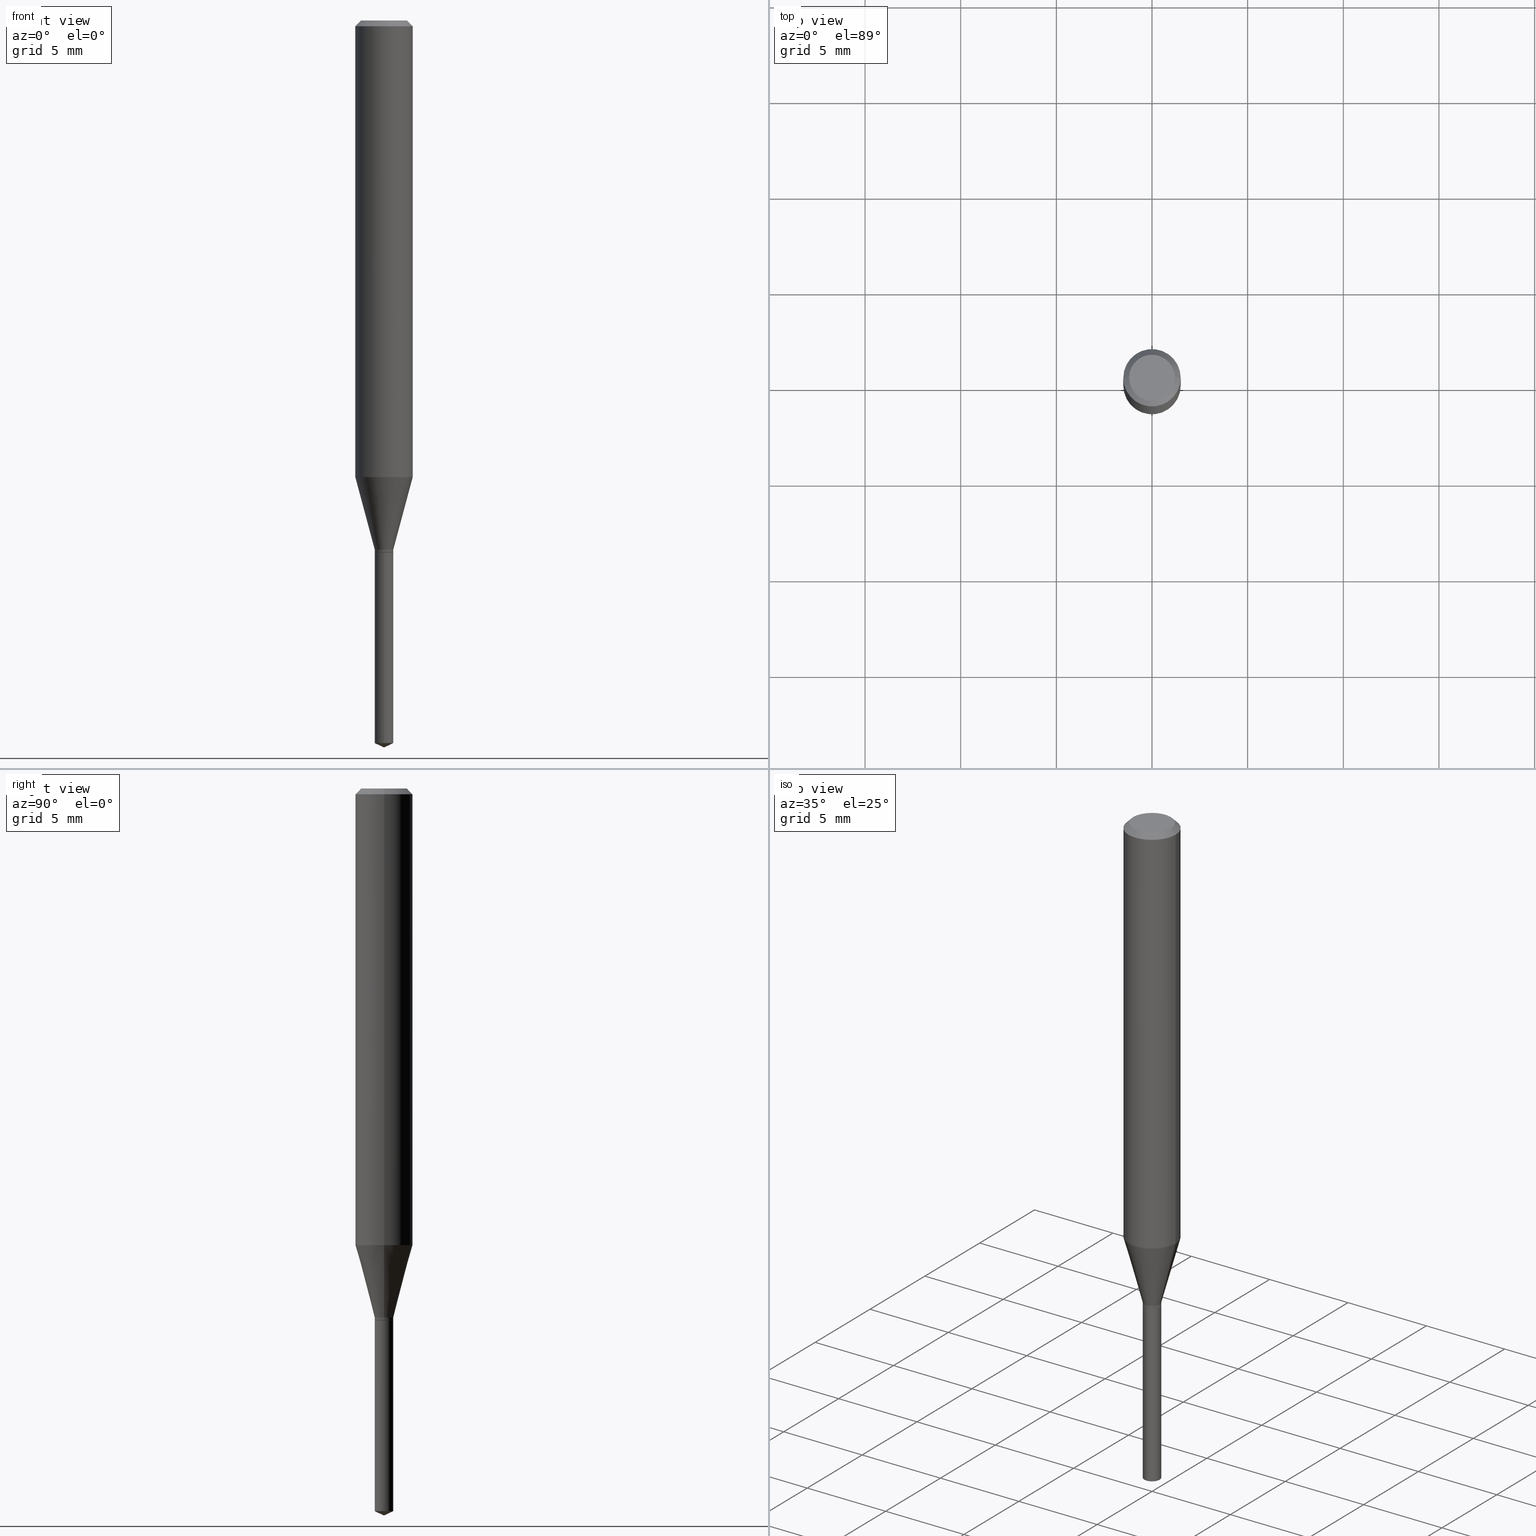
[diagram: canonical four-view strip — front | top / right | iso, engineering-drawing reading convention]
A machine part, canonical four-view strip (front | top / right | iso — engineering-drawing reading convention). The complete STEP part file that produces these views, byte-faithful:
ISO-10303-21;
HEADER;
FILE_DESCRIPTION (( 'STEP AP203' ),
    '1' );
FILE_NAME ('07821.STEP',
    '2024-04-24T03:47:21',
    ( '' ),
    ( '' ),
    'SwSTEP 2.0',
    'SolidWorks 2023',
    '' );
FILE_SCHEMA (( 'CONFIG_CONTROL_DESIGN' ));
ENDSEC;

DATA;
#1 = ORIENTED_EDGE ( 'NONE', *, *, #438, .T. ) ;
#2 = AXIS2_PLACEMENT_3D ( 'NONE', #338, #30, #448 ) ;
#3 = ORIENTED_EDGE ( 'NONE', *, *, #405, .F. ) ;
#4 = CARTESIAN_POINT ( 'NONE',  ( 2.662626436174376212E-29, -3.801524881732416844E-15, -1.088799999999999768 ) ) ;
#5 = VERTEX_POINT ( 'NONE', #349 ) ;
#6 = DIRECTION ( 'NONE',  ( 1.000000000000000000, -6.982962677686266711E-15, 4.876176775795935793E-29 ) ) ;
#7 = DIRECTION ( 'NONE',  ( -2.445468806185136597E-29, 3.491481338843145583E-15, 1.000000000000000000 ) ) ;
#8 = VERTEX_POINT ( 'NONE', #55 ) ;
#9 = DIRECTION ( 'NONE',  ( 1.000000000000000000, -6.982962677686264344E-15, 0.000000000000000000 ) ) ;
#10 = AXIS2_PLACEMENT_3D ( 'NONE', #411, #29, #378 ) ;
#11 = EDGE_LOOP ( 'NONE', ( #352, #488, #3, #489 ) ) ;
#12 = PLANE ( 'NONE',  #314 ) ;
#13 = ORIENTED_EDGE ( 'NONE', *, *, #425, .T. ) ;
#14 = CC_DESIGN_PERSON_AND_ORGANIZATION_ASSIGNMENT ( #86, #130, ( #439 ) ) ;
#15 = CALENDAR_DATE ( 2024, 23, 4 ) ;
#16 = CARTESIAN_POINT ( 'NONE',  ( 0.01910000000000000239, -1.333745871438077044E-16, 9.313497641770237533E-31 ) ) ;
#17 = FACE_OUTER_BOUND ( 'NONE', #419, .T. ) ;
#18 = FACE_OUTER_BOUND ( 'NONE', #392, .T. ) ;
#19 = FACE_OUTER_BOUND ( 'NONE', #225, .T. ) ;
#20 = PERSON_AND_ORGANIZATION ( #176, #248 ) ;
#21 = FACE_OUTER_BOUND ( 'NONE', #138, .T. ) ;
#22 = APPROVAL_ROLE ( '' ) ;
#23 = CARTESIAN_POINT ( 'NONE',  ( -0.04724000000000000421, 3.504923541997677355E-16, -3.380025165670481712E-19 ) ) ;
#24 = PRODUCT ( '07821', '07821', '', ( #97 ) ) ;
#25 = EDGE_CURVE ( 'NONE', #8, #109, #148, .T. ) ;
#26 = LINE ( 'NONE', #215, #247 ) ;
#27 = DIRECTION ( 'NONE',  ( -2.445470214571802116E-29, 3.491479321953280158E-15, 1.000000000000000000 ) ) ;
#28 = VECTOR ( 'NONE', #482, 39.37007874015748143 ) ;
#29 = DIRECTION ( 'NONE',  ( -2.445470214571802116E-29, 3.491479321953280158E-15, 1.000000000000000000 ) ) ;
#30 = DIRECTION ( 'NONE',  ( -2.445468806185136597E-29, 3.491481338843145583E-15, 1.000000000000000000 ) ) ;
#31 = EDGE_CURVE ( 'NONE', #387, #226, #302, .T. ) ;
#32 = EDGE_CURVE ( 'NONE', #109, #5, #133, .T. ) ;
#33 = LINE ( 'NONE', #251, #446 ) ;
#34 = EDGE_LOOP ( 'NONE', ( #388, #219, #454, #300 ) ) ;
#35 = CARTESIAN_POINT ( 'NONE',  ( 2.676565608369631794E-29, -3.821426325363822773E-15, -1.094499999999999806 ) ) ;
#36 = ORIENTED_EDGE ( 'NONE', *, *, #354, .T. ) ;
#37 = MANIFOLD_SOLID_BREP ( 'Body-Move/Copy2[2]', #41 ) ;
#38 = CIRCLE ( 'NONE', #10, 0.01910000000000000239 ) ;
#39 = LOCAL_TIME ( 23, 47, 21.00000000000000000, #114 ) ;
#40 = ORIENTED_EDGE ( 'NONE', *, *, #195, .T. ) ;
#41 = CLOSED_SHELL ( 'NONE', ( #456, #377, #331, #256, #182, #284, #98, #68, #107, #320, #143, #275 ) ) ;
#42 = AXIS2_PLACEMENT_3D ( 'NONE', #376, #299, #445 ) ;
#43 = CC_DESIGN_APPROVAL ( #370, ( #439 ) ) ;
#44 = EDGE_LOOP ( 'NONE', ( #313, #457, #307, #415 ) ) ;
#45 = CC_DESIGN_PERSON_AND_ORGANIZATION_ASSIGNMENT ( #288, #82, ( #439 ) ) ;
#46 = DIRECTION ( 'NONE',  ( 2.445468806185136597E-29, -3.491481338843145583E-15, -1.000000000000000000 ) ) ;
#47 = ORIENTED_EDGE ( 'NONE', *, *, #31, .F. ) ;
#48 = DIRECTION ( 'NONE',  ( -2.445468806185136597E-29, 3.491481338843145583E-15, 1.000000000000000000 ) ) ;
#49 = CARTESIAN_POINT ( 'NONE',  ( 2.676565608369631794E-29, -3.821426325363822773E-15, -1.094499999999999806 ) ) ;
#50 = CARTESIAN_POINT ( 'NONE',  ( 2.676565608369631794E-29, -3.821426325363822773E-15, -1.094499999999999806 ) ) ;
#51 = AXIS2_PLACEMENT_3D ( 'NONE', #162, #319, #282 ) ;
#52 = VECTOR ( 'NONE', #348, 39.37007874015748143 ) ;
#53 = ORIENTED_EDGE ( 'NONE', *, *, #81, .F. ) ;
#54 = CARTESIAN_POINT ( 'NONE',  ( -0.01910000000000000239, -3.674889070683229485E-15, -1.093999999999999861 ) ) ;
#55 = CARTESIAN_POINT ( 'NONE',  ( -0.01910000000000000239, -3.674889070683229485E-15, -1.088799999999999768 ) ) ;
#56 = CARTESIAN_POINT ( 'NONE',  ( 8.265746106709734507E-48, -1.180129479067563789E-33, -3.380025165646692144E-19 ) ) ;
#57 = DIRECTION ( 'NONE',  ( 1.000000000000000000, -6.982962677686264344E-15, 0.000000000000000000 ) ) ;
#58 = DATE_AND_TIME ( #366, #375 ) ;
#59 = DIRECTION ( 'NONE',  ( -1.000000000000000000, 6.982962677686266711E-15, 0.000000000000000000 ) ) ;
#60 = LINE ( 'NONE', #205, #407 ) ;
#61 = DATE_TIME_ROLE ( 'classification_date' ) ;
#62 = CONICAL_SURFACE ( 'NONE', #315, 0.01910000000000000239, 0.2617993877991500740 ) ;
#63 = DIRECTION ( 'NONE',  ( 6.439704144417036664E-15, 0.9063077870366530453, 0.4226182617406927244 ) ) ;
#64 = CARTESIAN_POINT ( 'NONE',  ( 0.000000000000000000, 0.000000000000000000, 0.000000000000000000 ) ) ;
#65 = ORIENTED_EDGE ( 'NONE', *, *, #32, .F. ) ;
#66 = ADVANCED_FACE ( 'NONE', ( #21 ), #128, .T. ) ;
#67 = CARTESIAN_POINT ( 'NONE',  ( -1.333745871437809078E-16, -0.01910000000000382225, -1.094499999999999806 ) ) ;
#68 = ADVANCED_FACE ( 'NONE', ( #367 ), #240, .T. ) ;
#69 = CIRCLE ( 'NONE', #184, 0.04724000000000000421 ) ;
#70 = LINE ( 'NONE', #79, #414 ) ;
#71 = APPROVAL_PERSON_ORGANIZATION ( #322, #413, #238 ) ;
#72 = ORIENTED_EDGE ( 'NONE', *, *, #157, .F. ) ;
#73 = EDGE_CURVE ( 'NONE', #410, #262, #165, .T. ) ;
#74 = VERTEX_POINT ( 'NONE', #329 ) ;
#75 = ORIENTED_EDGE ( 'NONE', *, *, #155, .F. ) ;
#76 = DIRECTION ( 'NONE',  ( 1.000000000000000000, -6.982962677686266711E-15, 0.000000000000000000 ) ) ;
#77 = CONICAL_SURFACE ( 'NONE', #123, 0.01860000000000000195, 0.7853981633974119747 ) ;
#78 = EDGE_LOOP ( 'NONE', ( #53, #449, #426, #344 ) ) ;
#79 = CARTESIAN_POINT ( 'NONE',  ( -0.01910000000000000239, 1.357136625301791525E-16, -9.395166022386871173E-31 ) ) ;
#80 = ORIENTED_EDGE ( 'NONE', *, *, #438, .F. ) ;
#81 = EDGE_CURVE ( 'NONE', #323, #104, #69, .T. ) ;
#82 = PERSON_AND_ORGANIZATION_ROLE ( 'creator' ) ;
#83 = ORIENTED_EDGE ( 'NONE', *, *, #293, .F. ) ;
#84 = DIRECTION ( 'NONE',  ( -6.982962677686265133E-15, -1.000000000000000000, 0.000000000000000000 ) ) ;
#85 = CARTESIAN_POINT ( 'NONE',  ( -0.05904999999999999832, 3.711095515056362547E-16, -0.01181000000000006871 ) ) ;
#86 = PERSON_AND_ORGANIZATION ( #176, #248 ) ;
#87 = ORIENTED_EDGE ( 'NONE', *, *, #476, .F. ) ;
#88 = DIRECTION ( 'NONE',  ( -2.445468806185136597E-29, 3.491481338843145583E-15, 1.000000000000000000 ) ) ;
#89 = DIRECTION ( 'NONE',  ( -2.445468806185136597E-29, 3.491481338843145583E-15, 1.000000000000000000 ) ) ;
#90 = DIRECTION ( 'NONE',  ( -2.445468806185136597E-29, 3.491481338843145583E-15, 1.000000000000000000 ) ) ;
#91 = DIRECTION ( 'NONE',  ( -2.445468806185136597E-29, 3.491481338843145583E-15, 1.000000000000000000 ) ) ;
#92 = CIRCLE ( 'NONE', #51, 0.01910000000000000239 ) ;
#93 = AXIS2_PLACEMENT_3D ( 'NONE', #64, #211, #96 ) ;
#94 = CYLINDRICAL_SURFACE ( 'NONE', #93, 0.01910000000000000239 ) ;
#95 = DIRECTION ( 'NONE',  ( -2.445470214571802116E-29, 3.491479321953280158E-15, 1.000000000000000000 ) ) ;
#96 = DIRECTION ( 'NONE',  ( 1.000000000000000000, -6.982962677686266711E-15, 4.876176775795935232E-29 ) ) ;
#97 = MECHANICAL_CONTEXT ( 'NONE', #321, 'mechanical' ) ;
#98 = ADVANCED_FACE ( 'NONE', ( #470 ), #401, .T. ) ;
#99 = AXIS2_PLACEMENT_3D ( 'NONE', #360, #91, #436 ) ;
#100 = CARTESIAN_POINT ( 'NONE',  ( 2.675342873966538993E-29, -3.819680584694400481E-15, -1.093999999999999861 ) ) ;
#101 = CIRCLE ( 'NONE', #296, 0.04724000000000000421 ) ;
#102 = LOCAL_TIME ( 23, 47, 21.00000000000000000, #396 ) ;
#103 = DIRECTION ( 'NONE',  ( 1.000000000000000000, -6.982962677686266711E-15, 4.876185090822587894E-29 ) ) ;
#104 = VERTEX_POINT ( 'NONE', #23 ) ;
#105 = APPLICATION_PROTOCOL_DEFINITION ( 'international standard', 'config_control_design', 1994, #384 ) ;
#106 = ORIENTED_EDGE ( 'NONE', *, *, #461, .F. ) ;
#107 = ADVANCED_FACE ( 'NONE', ( #131 ), #391, .T. ) ;
#108 = AXIS2_PLACEMENT_3D ( 'NONE', #132, #472, #175 ) ;
#109 = VERTEX_POINT ( 'NONE', #168 ) ;
#110 = DIRECTION ( 'NONE',  ( -2.445468806185136597E-29, 3.491481338843145583E-15, 1.000000000000000000 ) ) ;
#111 = ORIENTED_EDGE ( 'NONE', *, *, #223, .T. ) ;
#112 = AXIS2_PLACEMENT_3D ( 'NONE', #324, #208, #400 ) ;
#113 = AXIS2_PLACEMENT_3D ( 'NONE', #455, #357, #119 ) ;
#114 = COORDINATED_UNIVERSAL_TIME_OFFSET ( 5, 0, .BEHIND. ) ;
#115 = ORIENTED_EDGE ( 'NONE', *, *, #73, .T. ) ;
#116 = EDGE_CURVE ( 'NONE', #74, #410, #394, .T. ) ;
#117 = ORIENTED_EDGE ( 'NONE', *, *, #81, .T. ) ;
#118 = DIRECTION ( 'NONE',  ( -2.445468806185136597E-29, 3.491481338843145583E-15, 1.000000000000000000 ) ) ;
#119 = DIRECTION ( 'NONE',  ( 6.982962677686265922E-15, 1.000000000000000000, -3.491479321953280158E-15 ) ) ;
#120 = EDGE_LOOP ( 'NONE', ( #36, #343, #397, #154 ) ) ;
#121 = DIRECTION ( 'NONE',  ( 1.000000000000000000, -6.982962677686267499E-15, 0.000000000000000000 ) ) ;
#122 = CARTESIAN_POINT ( 'NONE',  ( 1.357136625302058998E-16, 0.01909999999999617906, -1.094499999999999806 ) ) ;
#123 = AXIS2_PLACEMENT_3D ( 'NONE', #169, #90, #57 ) ;
#124 = CC_DESIGN_APPROVAL ( #413, ( #480 ) ) ;
#125 = CARTESIAN_POINT ( 'NONE',  ( 2.676565608369631794E-29, -3.821426325363822773E-15, -1.094499999999999806 ) ) ;
#126 = EDGE_CURVE ( 'NONE', #387, #347, #266, .T. ) ;
#127 = CALENDAR_DATE ( 2024, 23, 4 ) ;
#128 = CYLINDRICAL_SURFACE ( 'NONE', #112, 0.01910000000000000239 ) ;
#129 = DIRECTION ( 'NONE',  ( -6.982962677686267499E-15, -1.000000000000000000, 3.520397390770433360E-15 ) ) ;
#130 = PERSON_AND_ORGANIZATION_ROLE ( 'design_supplier' ) ;
#131 = FACE_OUTER_BOUND ( 'NONE', #181, .T. ) ;
#132 = CARTESIAN_POINT ( 'NONE',  ( 2.676565608369631794E-29, -3.821426325363822773E-15, -1.094499999999999806 ) ) ;
#133 = CIRCLE ( 'NONE', #196, 0.05905000000000010935 ) ;
#134 = CONICAL_SURFACE ( 'NONE', #206, 0.01860000000000000195, 0.7853981633974119747 ) ;
#135 = DIRECTION ( 'NONE',  ( -2.445468806185136877E-29, 3.491481338843145188E-15, 1.000000000000000000 ) ) ;
#136 = CARTESIAN_POINT ( 'NONE',  ( 0.01910000000000000239, -3.934899468876224450E-15, -1.088799999999999768 ) ) ;
#137 = CARTESIAN_POINT ( 'NONE',  ( -9.261968845786000133E-28, 1.322362114038720264E-13, 37.87397874015748300 ) ) ;
#138 = EDGE_LOOP ( 'NONE', ( #460, #188, #145, #183 ) ) ;
#139 = AXIS2_PLACEMENT_3D ( 'NONE', #434, #468, #475 ) ;
#140 = DIRECTION ( 'NONE',  ( -2.445468806185136597E-29, 3.491481338843145583E-15, 1.000000000000000000 ) ) ;
#141 = VECTOR ( 'NONE', #63, 39.37007874015748854 ) ;
#142 = CC_DESIGN_DATE_AND_TIME_ASSIGNMENT ( #58, #398, ( #259 ) ) ;
#143 = ADVANCED_FACE ( 'NONE', ( #17 ), #12, .F. ) ;
#144 = FACE_OUTER_BOUND ( 'NONE', #11, .T. ) ;
#145 = ORIENTED_EDGE ( 'NONE', *, *, #444, .F. ) ;
#146 = APPROVAL_PERSON_ORGANIZATION ( #190, #364, #150 ) ;
#147 = ORIENTED_EDGE ( 'NONE', *, *, #116, .F. ) ;
#148 = LINE ( 'NONE', #311, #373 ) ;
#149 = CARTESIAN_POINT ( 'NONE',  ( 2.676565608369631794E-29, -3.821426325363822773E-15, -1.094499999999999806 ) ) ;
#150 = APPROVAL_ROLE ( '' ) ;
#151 = ORIENTED_EDGE ( 'NONE', *, *, #254, .F. ) ;
#152 = CIRCLE ( 'NONE', #108, 0.01860000000000000195 ) ;
#153 = DATE_AND_TIME ( #15, #102 ) ;
#154 = ORIENTED_EDGE ( 'NONE', *, *, #171, .F. ) ;
#155 = EDGE_CURVE ( 'NONE', #410, #450, #92, .T. ) ;
#156 = DIRECTION ( 'NONE',  ( 1.000000000000000000, -6.982962677686265922E-15, 4.876176775795935793E-29 ) ) ;
#157 = EDGE_CURVE ( 'NONE', #273, #262, #334, .T. ) ;
#158 = PLANE ( 'NONE',  #479 ) ;
#159 = EDGE_LOOP ( 'NONE', ( #217, #281 ) ) ;
#160 = DIRECTION ( 'NONE',  ( -2.445470214571802396E-29, 3.491479321953280158E-15, 1.000000000000000000 ) ) ;
#161 = CYLINDRICAL_SURFACE ( 'NONE', #428, 0.05905000000000005383 ) ;
#162 = CARTESIAN_POINT ( 'NONE',  ( 3.636885924104733214E-29, -5.192507643329431697E-15, -1.487193523729239519 ) ) ;
#163 = CARTESIAN_POINT ( 'NONE',  ( 2.662626436174376212E-29, -3.801524881732416844E-15, -1.088799999999999768 ) ) ;
#164 = CIRCLE ( 'NONE', #335, 0.01910000000000000239 ) ;
#165 = LINE ( 'NONE', #245, #340 ) ;
#166 = CARTESIAN_POINT ( 'NONE',  ( -9.261968845786000133E-28, 1.322362114038720264E-13, 37.87397874015748300 ) ) ;
#167 = DATE_AND_TIME ( #127, #270 ) ;
#168 = CARTESIAN_POINT ( 'NONE',  ( -0.05905000000000010241, -2.861385485543939476E-15, -0.9397045702376232157 ) ) ;
#169 = CARTESIAN_POINT ( 'NONE',  ( 2.676565608369631794E-29, -3.821426325363822773E-15, -1.094499999999999806 ) ) ;
#170 = LINE ( 'NONE', #271, #486 ) ;
#171 = EDGE_CURVE ( 'NONE', #180, #387, #235, .T. ) ;
#172 = VECTOR ( 'NONE', #204, 39.37007874015748143 ) ;
#173 = CONICAL_SURFACE ( 'NONE', #237, 84.42940631927483253, 1.134464013796318227 ) ;
#174 = DIRECTION ( 'NONE',  ( 1.000000000000000000, -6.982962677686266711E-15, 0.000000000000000000 ) ) ;
#175 = DIRECTION ( 'NONE',  ( 1.000000000000000000, -6.982962677686264344E-15, 0.000000000000000000 ) ) ;
#176 = PERSON ( 'UNSPECIFIED', 'UNSPECIFIED', 'UNSPECIFIED', ('UNSPECIFIED'), ('UNSPECIFIED'), ('UNSPECIFIED') ) ;
#177 = DIRECTION ( 'NONE',  ( 1.000000000000000000, -6.982962677686266711E-15, 0.000000000000000000 ) ) ;
#178 = DIRECTION ( 'NONE',  ( -2.445468806185136597E-29, 3.491481338843145583E-15, 1.000000000000000000 ) ) ;
#179 = CONICAL_SURFACE ( 'NONE', #437, 0.05904999999999999832, 0.7853981633974452814 ) ;
#180 = VERTEX_POINT ( 'NONE', #371 ) ;
#181 = EDGE_LOOP ( 'NONE', ( #467, #345, #239, #381 ) ) ;
#182 = ADVANCED_FACE ( 'NONE', ( #477 ), #257, .T. ) ;
#183 = ORIENTED_EDGE ( 'NONE', *, *, #73, .F. ) ;
#184 = AXIS2_PLACEMENT_3D ( 'NONE', #56, #289, #432 ) ;
#185 = EDGE_CURVE ( 'NONE', #192, #267, #356, .T. ) ;
#186 = AXIS2_PLACEMENT_3D ( 'NONE', #4, #110, #76 ) ;
#187 = LINE ( 'NONE', #85, #52 ) ;
#188 = ORIENTED_EDGE ( 'NONE', *, *, #390, .T. ) ;
#189 = FACE_OUTER_BOUND ( 'NONE', #159, .T. ) ;
#190 = PERSON_AND_ORGANIZATION ( #176, #248 ) ;
#191 = ORIENTED_EDGE ( 'NONE', *, *, #171, .T. ) ;
#192 = VERTEX_POINT ( 'NONE', #402 ) ;
#193 = DIRECTION ( 'NONE',  ( -2.438088387897960049E-29, 3.491481338843145188E-15, 1.000000000000000000 ) ) ;
#194 = FACE_OUTER_BOUND ( 'NONE', #78, .T. ) ;
#195 = EDGE_CURVE ( 'NONE', #109, #192, #33, .T. ) ;
#196 = AXIS2_PLACEMENT_3D ( 'NONE', #429, #89, #121 ) ;
#197 = CIRCLE ( 'NONE', #227, 0.01910000000000000239 ) ;
#198 = APPROVAL_PERSON_ORGANIZATION ( #20, #370, #22 ) ;
#199 = ORIENTED_EDGE ( 'NONE', *, *, #126, .T. ) ;
#200 = DIRECTION ( 'NONE',  ( 2.445468806185136597E-29, -3.491481338843145583E-15, -1.000000000000000000 ) ) ;
#201 = CARTESIAN_POINT ( 'NONE',  ( 2.662626436174376212E-29, -3.801524881732416844E-15, -1.088799999999999768 ) ) ;
#202 = DIRECTION ( 'NONE',  ( 1.000000000000000000, 0.000000000000000000, 0.000000000000000000 ) ) ;
#203 = PERSON_AND_ORGANIZATION_ROLE ( 'creator' ) ;
#204 = DIRECTION ( 'NONE',  ( -6.328713451373382000E-15, -0.9063077870366501587, 0.4226182617406989972 ) ) ;
#205 = CARTESIAN_POINT ( 'NONE',  ( 0.05905000000000005383, -4.123439461173744271E-16, 2.879382386107502672E-30 ) ) ;
#206 = AXIS2_PLACEMENT_3D ( 'NONE', #35, #178, #487 ) ;
#207 = DATE_AND_TIME ( #291, #222 ) ;
#208 = DIRECTION ( 'NONE',  ( -2.445470214571802116E-29, 3.491479321953280158E-15, 1.000000000000000000 ) ) ;
#209 =( LENGTH_UNIT ( ) NAMED_UNIT ( * ) SI_UNIT ( $, .METRE. ) );
#210 = DIRECTION ( 'NONE',  ( 0.000000000000000000, 0.000000000000000000, 1.000000000000000000 ) ) ;
#211 = DIRECTION ( 'NONE',  ( -2.445468806185136597E-29, 3.491481338843145583E-15, 1.000000000000000000 ) ) ;
#212 =( NAMED_UNIT ( * ) PLANE_ANGLE_UNIT ( ) SI_UNIT ( $, .RADIAN. ) );
#213 = UNCERTAINTY_MEASURE_WITH_UNIT (LENGTH_MEASURE( 1.000000000000000082E-05 ), #372, 'distance_accuracy_value', 'NONE');
#214 =( GEOMETRIC_REPRESENTATION_CONTEXT ( 3 ) GLOBAL_UNCERTAINTY_ASSIGNED_CONTEXT ( ( #213 ) ) GLOBAL_UNIT_ASSIGNED_CONTEXT ( ( #372, #212, #478 ) ) REPRESENTATION_CONTEXT ( 'NONE', 'WORKASPACE' ) );
#215 = CARTESIAN_POINT ( 'NONE',  ( 0.05904999999999999832, -4.463468013801466955E-16, -0.01181000000000006871 ) ) ;
#216 = CARTESIAN_POINT ( 'NONE',  ( 0.01860000000000000195, -3.951309431168787372E-15, -1.094499999999999806 ) ) ;
#217 = ORIENTED_EDGE ( 'NONE', *, *, #444, .T. ) ;
#218 = DIRECTION ( 'NONE',  ( -2.445468806185136597E-29, 3.491481338843145583E-15, 1.000000000000000000 ) ) ;
#219 = ORIENTED_EDGE ( 'NONE', *, *, #32, .T. ) ;
#220 = EDGE_LOOP ( 'NONE', ( #379, #1, #191, #151 ) ) ;
#221 = VECTOR ( 'NONE', #286, 39.37007874015748143 ) ;
#222 = LOCAL_TIME ( 23, 47, 21.00000000000000000, #358 ) ;
#223 = EDGE_CURVE ( 'NONE', #450, #410, #38, .T. ) ;
#224 = CARTESIAN_POINT ( 'NONE',  ( 0.04724000000000000421, -3.852183633974369345E-16, -3.380025165621689721E-19 ) ) ;
#225 = EDGE_LOOP ( 'NONE', ( #359, #40, #83, #106 ) ) ;
#226 = VERTEX_POINT ( 'NONE', #136 ) ;
#227 = AXIS2_PLACEMENT_3D ( 'NONE', #100, #342, #174 ) ;
#228 = FACE_OUTER_BOUND ( 'NONE', #304, .T. ) ;
#229 = EDGE_LOOP ( 'NONE', ( #278, #13, #385, #65 ) ) ;
#230 = EDGE_CURVE ( 'NONE', #416, #347, #409, .T. ) ;
#231 = DATE_AND_TIME ( #418, #39 ) ;
#232 = ORIENTED_EDGE ( 'NONE', *, *, #390, .F. ) ;
#233 = PERSON_AND_ORGANIZATION ( #176, #248 ) ;
#234 = ORIENTED_EDGE ( 'NONE', *, *, #303, .T. ) ;
#235 = LINE ( 'NONE', #216, #28 ) ;
#236 = AXIS2_PLACEMENT_3D ( 'NONE', #125, #422, #84 ) ;
#237 = AXIS2_PLACEMENT_3D ( 'NONE', #166, #403, #129 ) ;
#238 = APPROVAL_ROLE ( '' ) ;
#239 = ORIENTED_EDGE ( 'NONE', *, *, #423, .T. ) ;
#240 = CYLINDRICAL_SURFACE ( 'NONE', #139, 0.05905000000000005383 ) ;
#241 = CARTESIAN_POINT ( 'NONE',  ( -1.333745871437713182E-16, -0.01910000000000519269, -1.487193523729239519 ) ) ;
#242 = PERSON_AND_ORGANIZATION ( #176, #248 ) ;
#243 = DIRECTION ( 'NONE',  ( -2.445468806185136877E-29, 3.491481338843145188E-15, 1.000000000000000000 ) ) ;
#244 = PERSON_AND_ORGANIZATION_ROLE ( 'classification_officer' ) ;
#245 = CARTESIAN_POINT ( 'NONE',  ( -1.333745871437809078E-16, -0.01910000000000382225, -1.094499999999999806 ) ) ;
#246 = AXIS2_PLACEMENT_3D ( 'NONE', #292, #200, #59 ) ;
#247 = VECTOR ( 'NONE', #339, 39.37007874015748143 ) ;
#248 = ORGANIZATION ( 'UNSPECIFIED', 'UNSPECIFIED', '' ) ;
#249 = APPROVAL_DATE_TIME ( #167, #370 ) ;
#250 = DESIGN_CONTEXT ( 'detailed design', #384, 'design' ) ;
#251 = CARTESIAN_POINT ( 'NONE',  ( -0.05905000000000005383, 4.195754854663395423E-16, -2.904631170795524694E-30 ) ) ;
#252 = FACE_OUTER_BOUND ( 'NONE', #120, .T. ) ;
#253 = EDGE_CURVE ( 'NONE', #323, #267, #26, .T. ) ;
#254 = EDGE_CURVE ( 'NONE', #347, #387, #197, .T. ) ;
#255 = CARTESIAN_POINT ( 'NONE',  ( 0.000000000000000000, 0.000000000000000000, 0.000000000000000000 ) ) ;
#256 = ADVANCED_FACE ( 'NONE', ( #144 ), #62, .T. ) ;
#257 = CYLINDRICAL_SURFACE ( 'NONE', #2, 0.01910000000000000239 ) ;
#258 = DIRECTION ( 'NONE',  ( -6.982962677686267499E-15, -1.000000000000000000, 3.520397390770433360E-15 ) ) ;
#259 = PRODUCT_DEFINITION ( 'UNKNOWN', '', #439, #250 ) ;
#260 = AXIS2_PLACEMENT_3D ( 'NONE', #383, #7, #440 ) ;
#261 = CARTESIAN_POINT ( 'NONE',  ( 2.662626436174376212E-29, -3.801524881732416844E-15, -1.088799999999999768 ) ) ;
#262 = VERTEX_POINT ( 'NONE', #67 ) ;
#263 = FACE_OUTER_BOUND ( 'NONE', #220, .T. ) ;
#264 = EDGE_LOOP ( 'NONE', ( #355, #117 ) ) ;
#265 = DIMENSIONAL_EXPONENTS ( 1.000000000000000000, 0.000000000000000000, 0.000000000000000000, 0.000000000000000000, 0.000000000000000000, 0.000000000000000000, 0.000000000000000000 ) ;
#266 = CIRCLE ( 'NONE', #99, 0.01910000000000000239 ) ;
#267 = VERTEX_POINT ( 'NONE', #380 ) ;
#268 = EDGE_CURVE ( 'NONE', #104, #323, #101, .T. ) ;
#269 = AXIS2_PLACEMENT_3D ( 'NONE', #50, #88, #9 ) ;
#270 = LOCAL_TIME ( 23, 47, 21.00000000000000000, #435 ) ;
#271 = CARTESIAN_POINT ( 'NONE',  ( 0.01910000000000000239, -3.934899468876224450E-15, -1.088799999999999768 ) ) ;
#272 = FACE_OUTER_BOUND ( 'NONE', #264, .T. ) ;
#273 = VERTEX_POINT ( 'NONE', #441 ) ;
#274 = ORIENTED_EDGE ( 'NONE', *, *, #223, .F. ) ;
#275 = ADVANCED_FACE ( 'NONE', ( #263 ), #134, .T. ) ;
#276 = CIRCLE ( 'NONE', #186, 0.01910000000000000239 ) ;
#277 = SHAPE_DEFINITION_REPRESENTATION ( #404, #464 ) ;
#278 = ORIENTED_EDGE ( 'NONE', *, *, #25, .F. ) ;
#279 = DIRECTION ( 'NONE',  ( -2.445468806185136597E-29, 3.491481338843145583E-15, 1.000000000000000000 ) ) ;
#280 = APPROVAL_DATE_TIME ( #153, #413 ) ;
#281 = ORIENTED_EDGE ( 'NONE', *, *, #157, .T. ) ;
#282 = DIRECTION ( 'NONE',  ( -6.982962677686265133E-15, -1.000000000000000000, 0.000000000000000000 ) ) ;
#283 = CC_DESIGN_PERSON_AND_ORGANIZATION_ASSIGNMENT ( #233, #244, ( #480 ) ) ;
#284 = ADVANCED_FACE ( 'NONE', ( #306 ), #94, .T. ) ;
#285 = EDGE_LOOP ( 'NONE', ( #87, #317, #274 ) ) ;
#286 = DIRECTION ( 'NONE',  ( -2.445470214571802396E-29, 3.491479321953280158E-15, 1.000000000000000000 ) ) ;
#287 = EDGE_CURVE ( 'NONE', #226, #5, #170, .T. ) ;
#288 = PERSON_AND_ORGANIZATION ( #176, #248 ) ;
#289 = DIRECTION ( 'NONE',  ( -2.445468806185136597E-29, 3.491481338843145583E-15, 1.000000000000000000 ) ) ;
#290 = DIRECTION ( 'NONE',  ( -2.445468806185136597E-29, 3.491481338843145583E-15, 1.000000000000000000 ) ) ;
#291 = CALENDAR_DATE ( 2024, 23, 4 ) ;
#292 = CARTESIAN_POINT ( 'NONE',  ( 2.888098660104663328E-31, -4.123439461173779030E-17, -0.01181000000000006871 ) ) ;
#293 = EDGE_CURVE ( 'NONE', #267, #192, #452, .T. ) ;
#294 = CARTESIAN_POINT ( 'NONE',  ( 2.676565608369631794E-29, -3.821426325363822773E-15, -1.094499999999999806 ) ) ;
#295 = CLOSED_SHELL ( 'NONE', ( #66, #481, #451, #427, #420 ) ) ;
#296 = AXIS2_PLACEMENT_3D ( 'NONE', #485, #140, #103 ) ;
#297 = DIRECTION ( 'NONE',  ( -0.7071067811865218156, 7.493145998870261075E-15, 0.7071067811865732189 ) ) ;
#298 = APPLICATION_PROTOCOL_DEFINITION ( 'international standard', 'config_control_design', 1994, #321 ) ;
#299 = DIRECTION ( 'NONE',  ( -2.445468806185136597E-29, 3.491481338843145583E-15, 1.000000000000000000 ) ) ;
#300 = ORIENTED_EDGE ( 'NONE', *, *, #185, .F. ) ;
#301 = PERSON_AND_ORGANIZATION ( #176, #248 ) ;
#302 = LINE ( 'NONE', #16, #363 ) ;
#303 = EDGE_CURVE ( 'NONE', #347, #8, #70, .T. ) ;
#304 = EDGE_LOOP ( 'NONE', ( #232, #111, #115, #72 ) ) ;
#305 = PERSON_AND_ORGANIZATION_ROLE ( 'design_owner' ) ;
#306 = FACE_OUTER_BOUND ( 'NONE', #44, .T. ) ;
#307 = ORIENTED_EDGE ( 'NONE', *, *, #31, .T. ) ;
#308 = CIRCLE ( 'NONE', #269, 0.01860000000000000195 ) ;
#309 = DIRECTION ( 'NONE',  ( 0.2588190451025213501, 1.565188264969621968E-15, 0.9659258262890682012 ) ) ;
#310 = CARTESIAN_POINT ( 'NONE',  ( 0.000000000000000000, 0.000000000000000000, 0.000000000000000000 ) ) ;
#311 = CARTESIAN_POINT ( 'NONE',  ( -0.01910000000000000239, -3.665811219202237667E-15, -1.088799999999999768 ) ) ;
#312 = DIRECTION ( 'NONE',  ( -2.445470214571802116E-29, 3.491479321953280158E-15, 1.000000000000000000 ) ) ;
#313 = ORIENTED_EDGE ( 'NONE', *, *, #303, .F. ) ;
#314 = AXIS2_PLACEMENT_3D ( 'NONE', #49, #193, #156 ) ;
#315 = AXIS2_PLACEMENT_3D ( 'NONE', #261, #218, #177 ) ;
#316 = PLANE ( 'NONE',  #113 ) ;
#317 = ORIENTED_EDGE ( 'NONE', *, *, #116, .T. ) ;
#318 = CC_DESIGN_DATE_AND_TIME_ASSIGNMENT ( #207, #61, ( #480 ) ) ;
#319 = DIRECTION ( 'NONE',  ( -2.445470214571802116E-29, 3.491479321953280158E-15, 1.000000000000000000 ) ) ;
#320 = ADVANCED_FACE ( 'NONE', ( #272 ), #158, .F. ) ;
#321 = APPLICATION_CONTEXT ( 'configuration controlled 3d designs of mechanical parts and assemblies' ) ;
#322 = PERSON_AND_ORGANIZATION ( #176, #248 ) ;
#323 = VERTEX_POINT ( 'NONE', #224 ) ;
#324 = CARTESIAN_POINT ( 'NONE',  ( 2.676565608369631794E-29, -3.821426325363822773E-15, -1.094499999999999806 ) ) ;
#325 = CARTESIAN_POINT ( 'NONE',  ( 0.01910000000000000239, -3.953055171838208087E-15, -1.093999999999999861 ) ) ;
#326 = DIRECTION ( 'NONE',  ( 2.438088387897960049E-29, -3.491481338843145188E-15, -1.000000000000000000 ) ) ;
#327 = AXIS2_PLACEMENT_3D ( 'NONE', #201, #118, #389 ) ;
#328 = DIRECTION ( 'NONE',  ( -2.445468806185136877E-29, 3.491481338843145188E-15, 1.000000000000000000 ) ) ;
#329 = CARTESIAN_POINT ( 'NONE',  ( 3.658667988020872822E-29, -5.223602213574301462E-15, -1.496099999999999985 ) ) ;
#330 = DIRECTION ( 'NONE',  ( -6.982962677686265133E-15, -1.000000000000000000, 0.000000000000000000 ) ) ;
#331 = ADVANCED_FACE ( 'NONE', ( #19 ), #161, .T. ) ;
#332 = LENGTH_MEASURE_WITH_UNIT ( LENGTH_MEASURE( 0.02539999999999999897 ), #209 );
#333 = CARTESIAN_POINT ( 'NONE',  ( 3.658668015054778287E-29, -5.223602213574301462E-15, -1.496099999999999985 ) ) ;
#334 = CIRCLE ( 'NONE', #236, 0.01910000000000000239 ) ;
#335 = AXIS2_PLACEMENT_3D ( 'NONE', #294, #95, #443 ) ;
#336 = AXIS2_PLACEMENT_3D ( 'NONE', #149, #312, #330 ) ;
#337 = CARTESIAN_POINT ( 'NONE',  ( 4.132873053354867254E-48, -5.900647395337818946E-34, -1.690012582823346072E-19 ) ) ;
#338 = CARTESIAN_POINT ( 'NONE',  ( 0.000000000000000000, 0.000000000000000000, 0.000000000000000000 ) ) ;
#339 = DIRECTION ( 'NONE',  ( 0.7071067811865453523, -7.319954787623248157E-15, -0.7071067811865496822 ) ) ;
#340 = VECTOR ( 'NONE', #160, 39.37007874015748143 ) ;
#341 = CIRCLE ( 'NONE', #382, 0.05905000000000010935 ) ;
#342 = DIRECTION ( 'NONE',  ( -2.445468806185136597E-29, 3.491481338843145583E-15, 1.000000000000000000 ) ) ;
#343 = ORIENTED_EDGE ( 'NONE', *, *, #230, .T. ) ;
#344 = ORIENTED_EDGE ( 'NONE', *, *, #423, .F. ) ;
#345 = ORIENTED_EDGE ( 'NONE', *, *, #268, .F. ) ;
#346 = AXIS2_PLACEMENT_3D ( 'NONE', #255, #210, #202 ) ;
#347 = VERTEX_POINT ( 'NONE', #54 ) ;
#348 = DIRECTION ( 'NONE',  ( -0.7071067811865453523, 2.468850131082234184E-15, -0.7071067811865496822 ) ) ;
#349 = CARTESIAN_POINT ( 'NONE',  ( 0.05905000000000010241, -3.693304917127654284E-15, -0.9397045702376232157 ) ) ;
#350 = CYLINDRICAL_SURFACE ( 'NONE', #336, 0.01910000000000000239 ) ;
#351 = APPROVAL_STATUS ( 'not_yet_approved' ) ;
#352 = ORIENTED_EDGE ( 'NONE', *, *, #490, .T. ) ;
#353 = CARTESIAN_POINT ( 'NONE',  ( 2.888098660104663328E-31, -4.123439461173779030E-17, -0.01181000000000006871 ) ) ;
#354 = EDGE_CURVE ( 'NONE', #180, #416, #308, .T. ) ;
#355 = ORIENTED_EDGE ( 'NONE', *, *, #268, .T. ) ;
#356 = CIRCLE ( 'NONE', #42, 0.05904999999999999832 ) ;
#357 = DIRECTION ( 'NONE',  ( 2.445470214571801836E-29, -3.491479321953280158E-15, -1.000000000000000000 ) ) ;
#358 = COORDINATED_UNIVERSAL_TIME_OFFSET ( 5, 0, .BEHIND. ) ;
#359 = ORIENTED_EDGE ( 'NONE', *, *, #405, .T. ) ;
#360 = CARTESIAN_POINT ( 'NONE',  ( 2.675342873966538993E-29, -3.819680584694400481E-15, -1.093999999999999861 ) ) ;
#361 = LINE ( 'NONE', #333, #141 ) ;
#362 = COORDINATED_UNIVERSAL_TIME_OFFSET ( 5, 0, .BEHIND. ) ;
#363 = VECTOR ( 'NONE', #243, 39.37007874015748143 ) ;
#364 = APPROVAL ( #351, 'UNSPECIFIED' ) ;
#365 = CONICAL_SURFACE ( 'NONE', #374, 84.42940631927483253, 1.134464013796318227 ) ;
#366 = CALENDAR_DATE ( 2024, 23, 4 ) ;
#367 = FACE_OUTER_BOUND ( 'NONE', #34, .T. ) ;
#368 = MANIFOLD_SOLID_BREP ( 'Body-Move/Copy2[1]', #295 ) ;
#369 = DIRECTION ( 'NONE',  ( -0.2588190451025213501, 5.211531920934551042E-15, 0.9659258262890682012 ) ) ;
#370 = APPROVAL ( #471, 'UNSPECIFIED' ) ;
#371 = CARTESIAN_POINT ( 'NONE',  ( 0.01860000000000000195, -3.951309431168787372E-15, -1.094499999999999806 ) ) ;
#372 =( CONVERSION_BASED_UNIT ( 'INCH', #332 ) LENGTH_UNIT ( ) NAMED_UNIT ( #265 ) );
#373 = VECTOR ( 'NONE', #369, 39.37007874015747433 ) ;
#374 = AXIS2_PLACEMENT_3D ( 'NONE', #137, #27, #258 ) ;
#375 = LOCAL_TIME ( 23, 47, 21.00000000000000000, #362 ) ;
#376 = CARTESIAN_POINT ( 'NONE',  ( 2.888098660104663328E-31, -4.123439461173779030E-17, -0.01181000000000006871 ) ) ;
#377 = ADVANCED_FACE ( 'NONE', ( #194 ), #179, .T. ) ;
#378 = DIRECTION ( 'NONE',  ( -6.982962677686265133E-15, -1.000000000000000000, 0.000000000000000000 ) ) ;
#379 = ORIENTED_EDGE ( 'NONE', *, *, #230, .F. ) ;
#380 = CARTESIAN_POINT ( 'NONE',  ( 0.05904999999999999832, -4.535783407291118600E-16, -0.01181000000000006871 ) ) ;
#381 = ORIENTED_EDGE ( 'NONE', *, *, #185, .T. ) ;
#382 = AXIS2_PLACEMENT_3D ( 'NONE', #395, #48, #424 ) ;
#383 = CARTESIAN_POINT ( 'NONE',  ( 2.888098660104663328E-31, -4.123439461173779030E-17, -0.01181000000000006871 ) ) ;
#384 = APPLICATION_CONTEXT ( 'configuration controlled 3d designs of mechanical parts and assemblies' ) ;
#385 = ORIENTED_EDGE ( 'NONE', *, *, #287, .T. ) ;
#386 = LINE ( 'NONE', #122, #221 ) ;
#387 = VERTEX_POINT ( 'NONE', #325 ) ;
#388 = ORIENTED_EDGE ( 'NONE', *, *, #195, .F. ) ;
#389 = DIRECTION ( 'NONE',  ( 1.000000000000000000, -6.982962677686266711E-15, 0.000000000000000000 ) ) ;
#390 = EDGE_CURVE ( 'NONE', #450, #273, #386, .T. ) ;
#391 = CONICAL_SURFACE ( 'NONE', #246, 0.05904999999999999832, 0.7853981633974452814 ) ;
#392 = EDGE_LOOP ( 'NONE', ( #147, #463, #75 ) ) ;
#393 = CIRCLE ( 'NONE', #469, 0.01910000000000000239 ) ;
#394 = LINE ( 'NONE', #465, #172 ) ;
#395 = CARTESIAN_POINT ( 'NONE',  ( 2.298018213545717288E-29, -3.280960971010279363E-15, -0.9397045702376232157 ) ) ;
#396 = COORDINATED_UNIVERSAL_TIME_OFFSET ( 5, 0, .BEHIND. ) ;
#397 = ORIENTED_EDGE ( 'NONE', *, *, #126, .F. ) ;
#398 = DATE_TIME_ROLE ( 'creation_date' ) ;
#399 = FACE_OUTER_BOUND ( 'NONE', #285, .T. ) ;
#400 = DIRECTION ( 'NONE',  ( -6.982962677686265133E-15, -1.000000000000000000, 0.000000000000000000 ) ) ;
#401 = CONICAL_SURFACE ( 'NONE', #327, 0.01910000000000000239, 0.2617993877991500740 ) ;
#402 = CARTESIAN_POINT ( 'NONE',  ( -0.05904999999999999832, -1.241522197344668659E-15, -0.01181000000000006871 ) ) ;
#403 = DIRECTION ( 'NONE',  ( -2.445470214571802116E-29, 3.491479321953280158E-15, 1.000000000000000000 ) ) ;
#404 = PRODUCT_DEFINITION_SHAPE ( 'NONE', 'NONE',  #259 ) ;
#405 = EDGE_CURVE ( 'NONE', #5, #109, #341, .T. ) ;
#406 = CARTESIAN_POINT ( 'NONE',  ( -0.01860000000000000195, -3.689265376512444495E-15, -1.094499999999999806 ) ) ;
#407 = VECTOR ( 'NONE', #328, 39.37007874015748143 ) ;
#408 = CC_DESIGN_APPROVAL ( #364, ( #259 ) ) ;
#409 = LINE ( 'NONE', #406, #459 ) ;
#410 = VERTEX_POINT ( 'NONE', #241 ) ;
#411 = CARTESIAN_POINT ( 'NONE',  ( 3.636885924104733214E-29, -5.192507643329431697E-15, -1.487193523729239519 ) ) ;
#412 = EDGE_LOOP ( 'NONE', ( #199, #234, #421, #47 ) ) ;
#413 = APPROVAL ( #466, 'UNSPECIFIED' ) ;
#414 = VECTOR ( 'NONE', #473, 39.37007874015748143 ) ;
#415 = ORIENTED_EDGE ( 'NONE', *, *, #425, .F. ) ;
#416 = VERTEX_POINT ( 'NONE', #462 ) ;
#417 = DIRECTION ( 'NONE',  ( -1.000000000000000000, 6.982962677686266711E-15, 0.000000000000000000 ) ) ;
#418 = CALENDAR_DATE ( 2024, 23, 4 ) ;
#419 = EDGE_LOOP ( 'NONE', ( #453, #80 ) ) ;
#420 = ADVANCED_FACE ( 'NONE', ( #189 ), #316, .F. ) ;
#421 = ORIENTED_EDGE ( 'NONE', *, *, #490, .F. ) ;
#422 = DIRECTION ( 'NONE',  ( -2.445470214571802116E-29, 3.491479321953280158E-15, 1.000000000000000000 ) ) ;
#423 = EDGE_CURVE ( 'NONE', #104, #192, #187, .T. ) ;
#424 = DIRECTION ( 'NONE',  ( 1.000000000000000000, -6.982962677686267499E-15, 0.000000000000000000 ) ) ;
#425 = EDGE_CURVE ( 'NONE', #8, #226, #276, .T. ) ;
#426 = ORIENTED_EDGE ( 'NONE', *, *, #293, .T. ) ;
#427 = ADVANCED_FACE ( 'NONE', ( #228 ), #350, .T. ) ;
#428 = AXIS2_PLACEMENT_3D ( 'NONE', #310, #279, #6 ) ;
#429 = CARTESIAN_POINT ( 'NONE',  ( 2.298018213545717288E-29, -3.280960971010279363E-15, -0.9397045702376232157 ) ) ;
#430 = CC_DESIGN_SECURITY_CLASSIFICATION ( #480, ( #439 ) ) ;
#431 = CC_DESIGN_PERSON_AND_ORGANIZATION_ASSIGNMENT ( #242, #203, ( #259 ) ) ;
#432 = DIRECTION ( 'NONE',  ( 1.000000000000000000, -6.982962677686266711E-15, 4.876185090822587894E-29 ) ) ;
#433 = SECURITY_CLASSIFICATION_LEVEL ( 'unclassified' ) ;
#434 = CARTESIAN_POINT ( 'NONE',  ( 0.000000000000000000, 0.000000000000000000, 0.000000000000000000 ) ) ;
#435 = COORDINATED_UNIVERSAL_TIME_OFFSET ( 5, 0, .BEHIND. ) ;
#436 = DIRECTION ( 'NONE',  ( 1.000000000000000000, -6.982962677686266711E-15, 0.000000000000000000 ) ) ;
#437 = AXIS2_PLACEMENT_3D ( 'NONE', #353, #46, #417 ) ;
#438 = EDGE_CURVE ( 'NONE', #416, #180, #152, .T. ) ;
#439 = PRODUCT_DEFINITION_FORMATION_WITH_SPECIFIED_SOURCE ( 'ANY', '', #24, .NOT_KNOWN. ) ;
#440 = DIRECTION ( 'NONE',  ( 1.000000000000000000, -6.982962677686266711E-15, 0.000000000000000000 ) ) ;
#441 = CARTESIAN_POINT ( 'NONE',  ( 1.357136625302155634E-16, 0.01909999999999617906, -1.094499999999999806 ) ) ;
#442 = DIRECTION ( 'NONE',  ( 1.000000000000000000, -6.982962677686266711E-15, 0.000000000000000000 ) ) ;
#443 = DIRECTION ( 'NONE',  ( -6.982962677686265133E-15, -1.000000000000000000, 0.000000000000000000 ) ) ;
#444 = EDGE_CURVE ( 'NONE', #262, #273, #164, .T. ) ;
#445 = DIRECTION ( 'NONE',  ( 1.000000000000000000, -6.982962677686266711E-15, 0.000000000000000000 ) ) ;
#446 = VECTOR ( 'NONE', #135, 39.37007874015748143 ) ;
#447 = DIRECTION ( 'NONE',  ( -1.000000000000000000, 6.982962677686265922E-15, -4.876176775795935793E-29 ) ) ;
#448 = DIRECTION ( 'NONE',  ( 1.000000000000000000, -6.982962677686266711E-15, 4.876176775795935232E-29 ) ) ;
#449 = ORIENTED_EDGE ( 'NONE', *, *, #253, .T. ) ;
#450 = VERTEX_POINT ( 'NONE', #483 ) ;
#451 = ADVANCED_FACE ( 'NONE', ( #399 ), #365, .T. ) ;
#452 = CIRCLE ( 'NONE', #260, 0.05904999999999999832 ) ;
#453 = ORIENTED_EDGE ( 'NONE', *, *, #354, .F. ) ;
#454 = ORIENTED_EDGE ( 'NONE', *, *, #461, .T. ) ;
#455 = CARTESIAN_POINT ( 'NONE',  ( 2.676565608369631794E-29, -3.821426325363822773E-15, -1.094499999999999806 ) ) ;
#456 = ADVANCED_FACE ( 'NONE', ( #252 ), #77, .T. ) ;
#457 = ORIENTED_EDGE ( 'NONE', *, *, #254, .T. ) ;
#458 = PRODUCT_RELATED_PRODUCT_CATEGORY ( 'detail', '', ( #24 ) ) ;
#459 = VECTOR ( 'NONE', #297, 39.37007874015748143 ) ;
#460 = ORIENTED_EDGE ( 'NONE', *, *, #155, .T. ) ;
#461 = EDGE_CURVE ( 'NONE', #5, #267, #60, .T. ) ;
#462 = CARTESIAN_POINT ( 'NONE',  ( -0.01860000000000000195, -3.686616149338333294E-15, -1.094499999999999806 ) ) ;
#463 = ORIENTED_EDGE ( 'NONE', *, *, #476, .T. ) ;
#464 = ADVANCED_BREP_SHAPE_REPRESENTATION ( '07821', ( #368, #37, #346 ), #214 ) ;
#465 = CARTESIAN_POINT ( 'NONE',  ( 3.658664905062460986E-29, -5.223606628546217219E-15, -1.496099999999999985 ) ) ;
#466 = APPROVAL_STATUS ( 'not_yet_approved' ) ;
#467 = ORIENTED_EDGE ( 'NONE', *, *, #253, .F. ) ;
#468 = DIRECTION ( 'NONE',  ( -2.445468806185136597E-29, 3.491481338843145583E-15, 1.000000000000000000 ) ) ;
#469 = AXIS2_PLACEMENT_3D ( 'NONE', #163, #290, #442 ) ;
#470 = FACE_OUTER_BOUND ( 'NONE', #229, .T. ) ;
#471 = APPROVAL_STATUS ( 'not_yet_approved' ) ;
#472 = DIRECTION ( 'NONE',  ( -2.445468806185136597E-29, 3.491481338843145583E-15, 1.000000000000000000 ) ) ;
#473 = DIRECTION ( 'NONE',  ( -2.445468806185136877E-29, 3.491481338843145188E-15, 1.000000000000000000 ) ) ;
#474 = APPROVAL_DATE_TIME ( #231, #364 ) ;
#475 = DIRECTION ( 'NONE',  ( 1.000000000000000000, -6.982962677686266711E-15, 4.876176775795935793E-29 ) ) ;
#476 = EDGE_CURVE ( 'NONE', #74, #450, #361, .T. ) ;
#477 = FACE_OUTER_BOUND ( 'NONE', #412, .T. ) ;
#478 =( NAMED_UNIT ( * ) SI_UNIT ( $, .STERADIAN. ) SOLID_ANGLE_UNIT ( ) );
#479 = AXIS2_PLACEMENT_3D ( 'NONE', #337, #326, #447 ) ;
#480 = SECURITY_CLASSIFICATION ( '', '', #433 ) ;
#481 = ADVANCED_FACE ( 'NONE', ( #18 ), #173, .T. ) ;
#482 = DIRECTION ( 'NONE',  ( 0.7071067811865218156, -2.468850131081987665E-15, 0.7071067811865732189 ) ) ;
#483 = CARTESIAN_POINT ( 'NONE',  ( 1.357136625302154648E-16, 0.01909999999999480516, -1.487193523729239519 ) ) ;
#484 = CC_DESIGN_PERSON_AND_ORGANIZATION_ASSIGNMENT ( #301, #305, ( #24 ) ) ;
#485 = CARTESIAN_POINT ( 'NONE',  ( 8.265746106709734507E-48, -1.180129479067563789E-33, -3.380025165646692144E-19 ) ) ;
#486 = VECTOR ( 'NONE', #309, 39.37007874015747433 ) ;
#487 = DIRECTION ( 'NONE',  ( 1.000000000000000000, -6.982962677686264344E-15, 0.000000000000000000 ) ) ;
#488 = ORIENTED_EDGE ( 'NONE', *, *, #25, .T. ) ;
#489 = ORIENTED_EDGE ( 'NONE', *, *, #287, .F. ) ;
#490 = EDGE_CURVE ( 'NONE', #226, #8, #393, .T. ) ;
ENDSEC;
END-ISO-10303-21;
